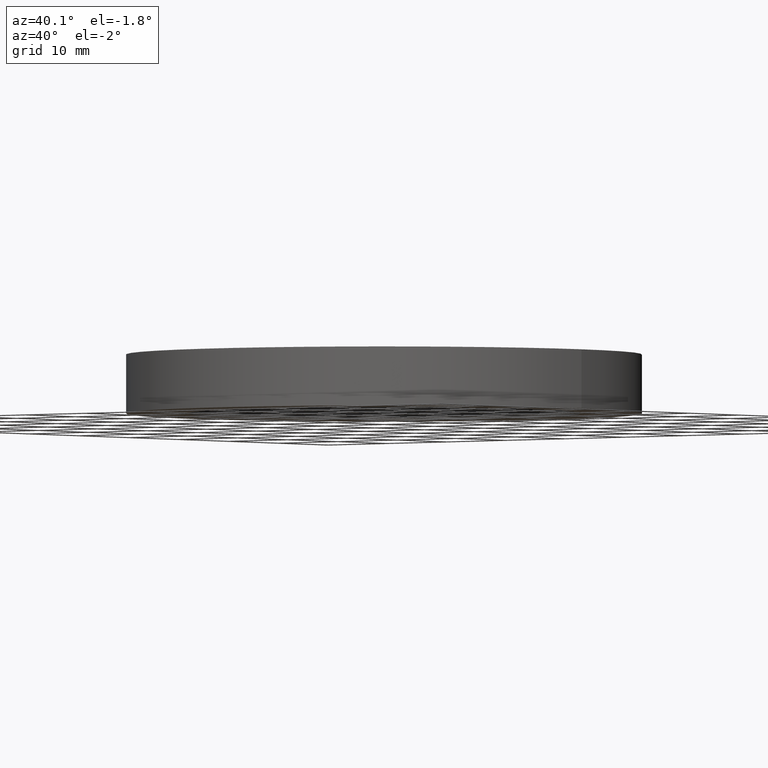
[diagram: clean part render]
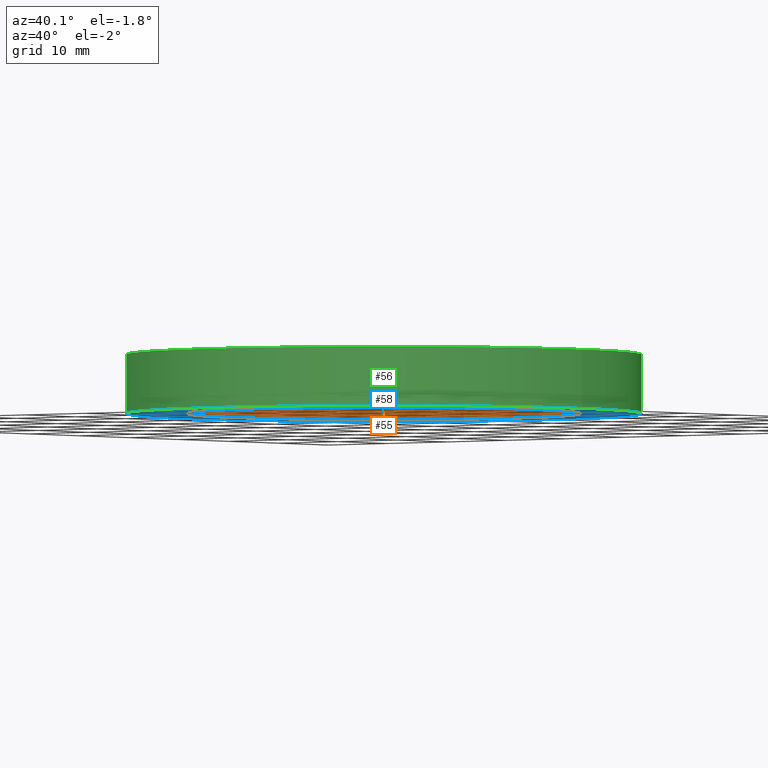
[diagram: same view with three faces highlighted in distinct colors, each labeled with its STEP entity id]
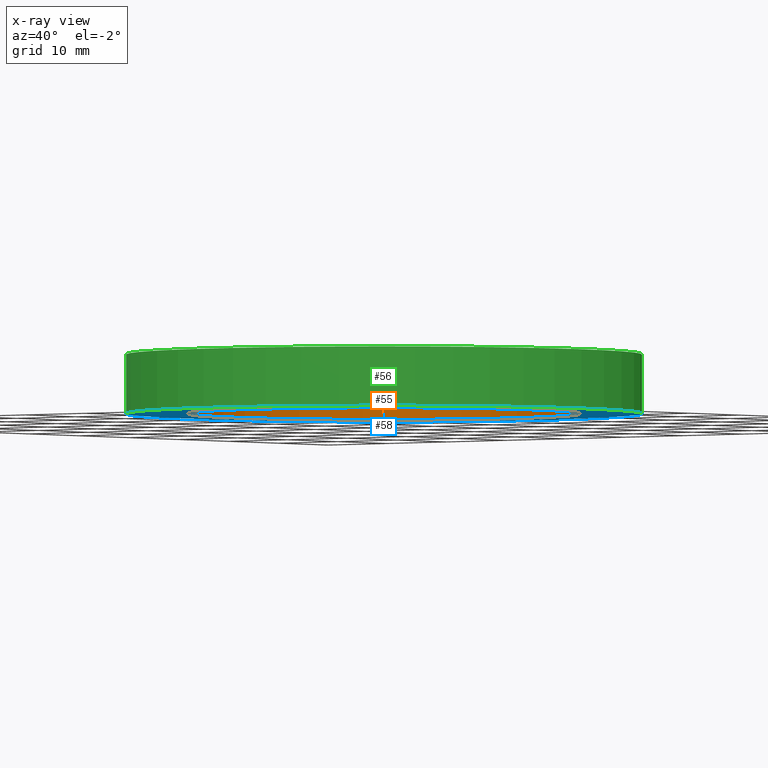
[diagram: x-ray of the same camera — body ghosted, the three highlighted faces saturated]
A machine part, auxiliary view with three faces highlighted in distinct colors.
The next image is the same camera in x-ray (body ghosted, the three faces saturated) — at least one of them is partly hidden behind the body in this view.
Their STEP definitions:

[orange] entity #55 — the highlighted cylindrical surface (bore or boss wall) has radius 25.4 mm, axis along (0, 0, 1).
#17=FACE_BOUND('',#26,.T.);
#21=FACE_OUTER_BOUND('',#25,.T.);
#25=EDGE_LOOP('',(#45));
#26=EDGE_LOOP('',(#46));
#33=CIRCLE('',#68,1.);
#34=CIRCLE('',#69,1.);
#37=VERTEX_POINT('',#95);
#38=VERTEX_POINT('',#97);
#41=EDGE_CURVE('',#37,#37,#33,.T.);
#42=EDGE_CURVE('',#38,#38,#34,.T.);
#45=ORIENTED_EDGE('',*,*,#41,.F.);
#46=ORIENTED_EDGE('',*,*,#42,.F.);
#53=CYLINDRICAL_SURFACE('',#67,1.);
#55=ADVANCED_FACE('',(#21,#17),#53,.F.);
#67=AXIS2_PLACEMENT_3D('',#94,#77,#78);
#68=AXIS2_PLACEMENT_3D('',#96,#79,#80);
#69=AXIS2_PLACEMENT_3D('',#98,#81,#82);
#77=DIRECTION('center_axis',(0.,0.,1.));
#78=DIRECTION('ref_axis',(-1.,0.,0.));
#79=DIRECTION('center_axis',(0.,0.,-1.));
#80=DIRECTION('ref_axis',(-1.,0.,0.));
#81=DIRECTION('center_axis',(0.,0.,1.));
#82=DIRECTION('ref_axis',(-1.,0.,0.));
#94=CARTESIAN_POINT('Origin',(0.,0.,-0.125));
#95=CARTESIAN_POINT('',(1.,-1.22464679914735E-16,0.175));
#96=CARTESIAN_POINT('Origin',(0.,0.,0.175));
#97=CARTESIAN_POINT('',(1.,1.22464679914735E-16,-0.125));
#98=CARTESIAN_POINT('Origin',(0.,0.,-0.125));

[blue] entity #58 — the highlighted planar face has unit normal (0, 0, -1).
#16=PLANE('',#74);
#20=FACE_BOUND('',#32,.T.);
#24=FACE_OUTER_BOUND('',#31,.T.);
#31=EDGE_LOOP('',(#51));
#32=EDGE_LOOP('',(#52));
#34=CIRCLE('',#69,1.);
#36=CIRCLE('',#72,1.3125);
#38=VERTEX_POINT('',#97);
#40=VERTEX_POINT('',#102);
#42=EDGE_CURVE('',#38,#38,#34,.T.);
#44=EDGE_CURVE('',#40,#40,#36,.T.);
#51=ORIENTED_EDGE('',*,*,#44,.T.);
#52=ORIENTED_EDGE('',*,*,#42,.T.);
#58=ADVANCED_FACE('',(#24,#20),#16,.T.);
#69=AXIS2_PLACEMENT_3D('',#98,#81,#82);
#72=AXIS2_PLACEMENT_3D('',#103,#87,#88);
#74=AXIS2_PLACEMENT_3D('',#105,#91,#92);
#81=DIRECTION('center_axis',(0.,0.,1.));
#82=DIRECTION('ref_axis',(-1.,0.,0.));
#87=DIRECTION('center_axis',(0.,0.,-1.));
#88=DIRECTION('ref_axis',(-1.,0.,0.));
#91=DIRECTION('center_axis',(0.,0.,-1.));
#92=DIRECTION('ref_axis',(-1.,0.,0.));
#97=CARTESIAN_POINT('',(1.,1.22464679914735E-16,-0.125));
#98=CARTESIAN_POINT('Origin',(0.,0.,-0.125));
#102=CARTESIAN_POINT('',(1.3125,1.6073489238809E-16,-0.125));
#103=CARTESIAN_POINT('Origin',(0.,0.,-0.125));
#105=CARTESIAN_POINT('Origin',(0.,0.,-0.125));

[green] entity #56 — the highlighted cylindrical surface (bore or boss wall) has radius 33.3375 mm, axis along (0, 0, 1).
#18=FACE_BOUND('',#28,.T.);
#22=FACE_OUTER_BOUND('',#27,.T.);
#27=EDGE_LOOP('',(#47));
#28=EDGE_LOOP('',(#48));
#35=CIRCLE('',#71,1.3125);
#36=CIRCLE('',#72,1.3125);
#39=VERTEX_POINT('',#100);
#40=VERTEX_POINT('',#102);
#43=EDGE_CURVE('',#39,#39,#35,.T.);
#44=EDGE_CURVE('',#40,#40,#36,.T.);
#47=ORIENTED_EDGE('',*,*,#43,.T.);
#48=ORIENTED_EDGE('',*,*,#44,.F.);
#54=CYLINDRICAL_SURFACE('',#70,1.3125);
#56=ADVANCED_FACE('',(#22,#18),#54,.T.);
#70=AXIS2_PLACEMENT_3D('',#99,#83,#84);
#71=AXIS2_PLACEMENT_3D('',#101,#85,#86);
#72=AXIS2_PLACEMENT_3D('',#103,#87,#88);
#83=DIRECTION('center_axis',(0.,0.,1.));
#84=DIRECTION('ref_axis',(-1.,0.,0.));
#85=DIRECTION('center_axis',(0.,0.,-1.));
#86=DIRECTION('ref_axis',(-1.,0.,0.));
#87=DIRECTION('center_axis',(0.,0.,-1.));
#88=DIRECTION('ref_axis',(-1.,0.,0.));
#99=CARTESIAN_POINT('Origin',(0.,0.,-0.125));
#100=CARTESIAN_POINT('',(1.3125,1.6073489238809E-16,0.175));
#101=CARTESIAN_POINT('Origin',(0.,0.,0.175));
#102=CARTESIAN_POINT('',(1.3125,1.6073489238809E-16,-0.125));
#103=CARTESIAN_POINT('Origin',(0.,0.,-0.125));